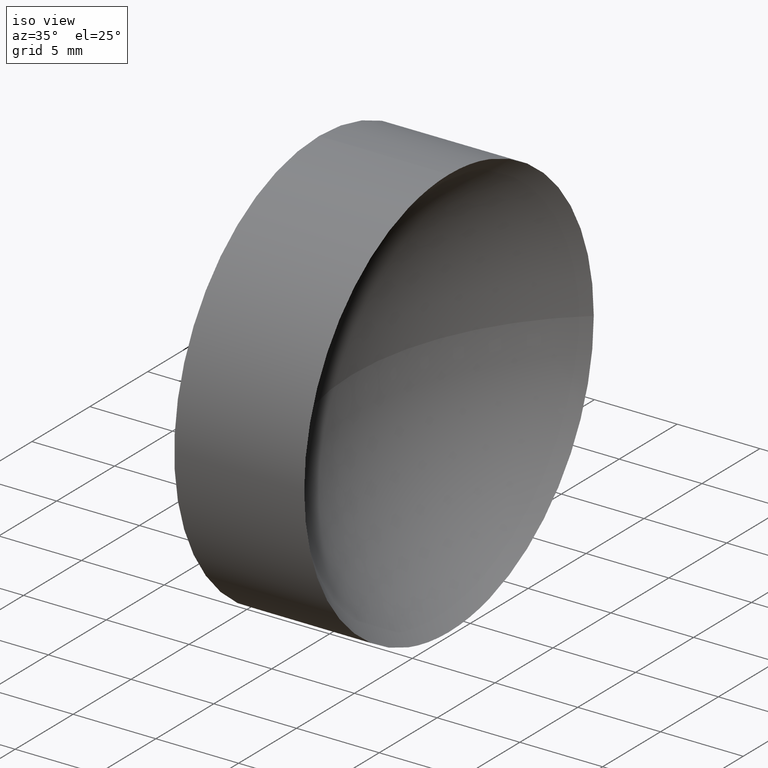
[diagram: clean part render]
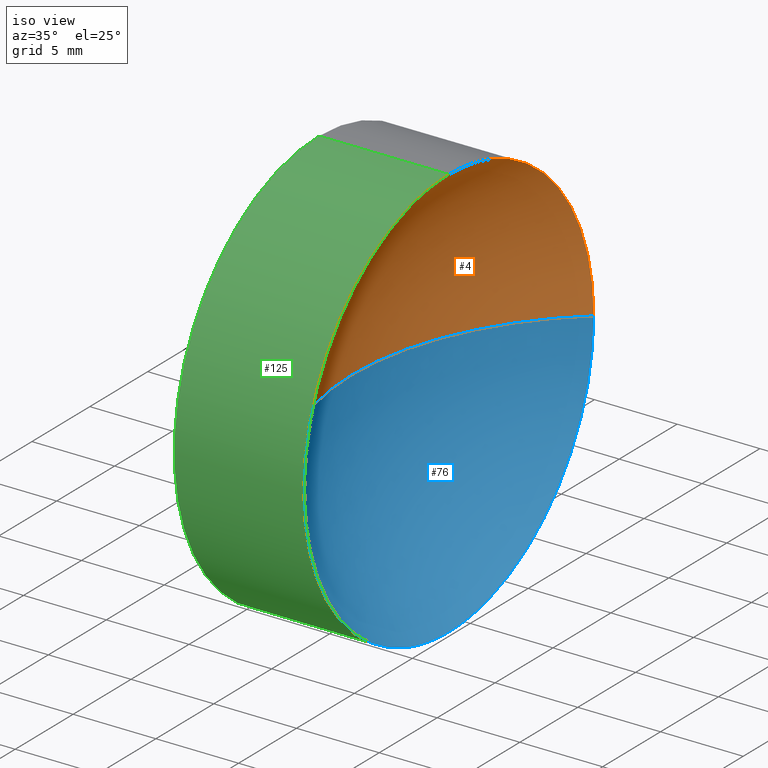
[diagram: same view with three faces highlighted in distinct colors, each labeled with its STEP entity id]
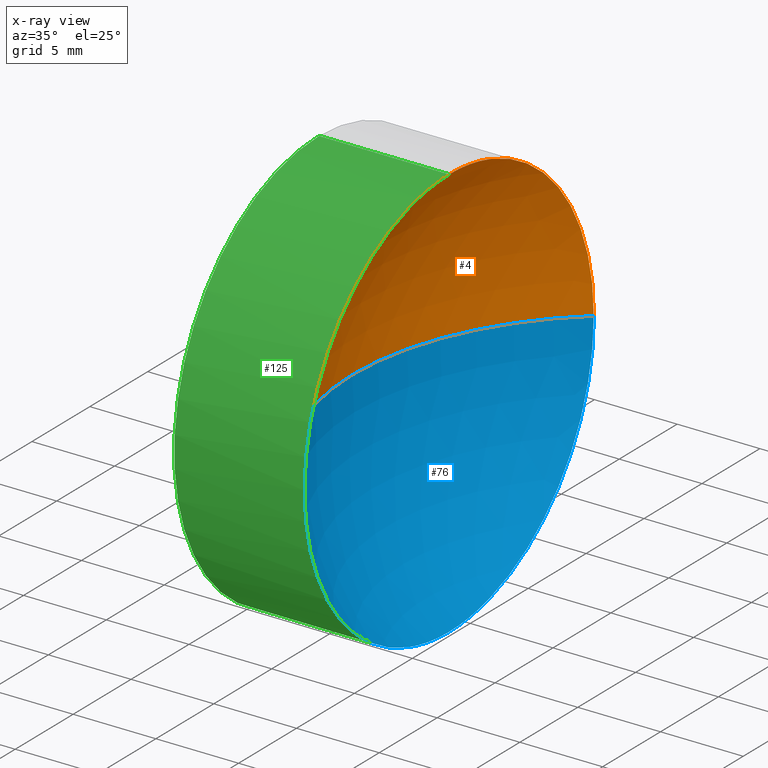
[diagram: x-ray of the same camera — body ghosted, the three highlighted faces saturated]
A machine part, iso view with three faces highlighted in distinct colors.
The next image is the same camera in x-ray (body ghosted, the three faces saturated) — at least one of them is partly hidden behind the body in this view.
Their STEP definitions:

[orange] entity #4 — the highlighted spherical surface has radius 16.27 mm.
#4 = ADVANCED_FACE ( 'NONE', ( #41 ), #169, .F. ) ;
#11 = VERTEX_POINT ( 'NONE', #18 ) ;
#12 = ORIENTED_EDGE ( 'NONE', *, *, #68, .T. ) ;
#16 = DIRECTION ( 'NONE',  ( 0.0000000000000000000, -1.000000000000000000, -1.224646799147353200E-016 ) ) ;
#18 = CARTESIAN_POINT ( 'NONE',  ( 65.38778473377520600, 45.11076812922679100, 1.530808498934191500E-015 ) ) ;
#20 = CARTESIAN_POINT ( 'NONE',  ( 75.80233705252611300, 32.61076812922678400, 0.0000000000000000000 ) ) ;
#21 = EDGE_CURVE ( 'NONE', #11, #88, #133, .T. ) ;
#22 = DIRECTION ( 'NONE',  ( -1.000000000000000000, 0.0000000000000000000, 0.0000000000000000000 ) ) ;
#33 = CARTESIAN_POINT ( 'NONE',  ( 65.38778473377520600, 32.61076812922678400, 0.0000000000000000000 ) ) ;
#38 = DIRECTION ( 'NONE',  ( 0.0000000000000000000, 0.0000000000000000000, 1.000000000000000000 ) ) ;
#40 = AXIS2_PLACEMENT_3D ( 'NONE', #86, #186, #16 ) ;
#41 = FACE_OUTER_BOUND ( 'NONE', #124, .T. ) ;
#55 = AXIS2_PLACEMENT_3D ( 'NONE', #33, #123, #160 ) ;
#57 = CARTESIAN_POINT ( 'NONE',  ( 75.80233705252611300, 32.61076812922678400, 0.0000000000000000000 ) ) ;
#65 = AXIS2_PLACEMENT_3D ( 'NONE', #94, #78, #38 ) ;
#68 = EDGE_CURVE ( 'NONE', #84, #88, #176, .T. ) ;
#78 = DIRECTION ( 'NONE',  ( -1.000000000000000000, -0.0000000000000000000, -0.0000000000000000000 ) ) ;
#80 = EDGE_CURVE ( 'NONE', #181, #11, #101, .T. ) ;
#84 = VERTEX_POINT ( 'NONE', #134 ) ;
#85 = AXIS2_PLACEMENT_3D ( 'NONE', #57, #159, #146 ) ;
#86 = CARTESIAN_POINT ( 'NONE',  ( 75.80233705252611300, 32.61076812922678400, 0.0000000000000000000 ) ) ;
#87 = EDGE_CURVE ( 'NONE', #84, #181, #185, .T. ) ;
#88 = VERTEX_POINT ( 'NONE', #107 ) ;
#94 = CARTESIAN_POINT ( 'NONE',  ( 65.38778473377520600, 32.61076812922678400, 0.0000000000000000000 ) ) ;
#100 = ORIENTED_EDGE ( 'NONE', *, *, #87, .F. ) ;
#101 = CIRCLE ( 'NONE', #55, 12.49999999999999600 ) ;
#107 = CARTESIAN_POINT ( 'NONE',  ( 59.53233705252611700, 32.61076812922678400, 0.0000000000000000000 ) ) ;
#111 = CARTESIAN_POINT ( 'NONE',  ( 65.38778473377520600, 32.61076812922678400, 12.49999999999999600 ) ) ;
#120 = ORIENTED_EDGE ( 'NONE', *, *, #21, .F. ) ;
#122 = ORIENTED_EDGE ( 'NONE', *, *, #80, .F. ) ;
#123 = DIRECTION ( 'NONE',  ( -1.000000000000000000, -0.0000000000000000000, -0.0000000000000000000 ) ) ;
#124 = EDGE_LOOP ( 'NONE', ( #120, #122, #100, #12 ) ) ;
#133 = CIRCLE ( 'NONE', #40, 16.27000000000000000 ) ;
#134 = CARTESIAN_POINT ( 'NONE',  ( 65.38778473377520600, 20.11076812922678800, 0.0000000000000000000 ) ) ;
#146 = DIRECTION ( 'NONE',  ( 0.0000000000000000000, -1.000000000000000000, 0.0000000000000000000 ) ) ;
#151 = AXIS2_PLACEMENT_3D ( 'NONE', #20, #174, #22 ) ;
#159 = DIRECTION ( 'NONE',  ( 0.0000000000000000000, 0.0000000000000000000, 1.000000000000000000 ) ) ;
#160 = DIRECTION ( 'NONE',  ( 0.0000000000000000000, 0.0000000000000000000, 1.000000000000000000 ) ) ;
#169 = SPHERICAL_SURFACE ( 'NONE', #85, 16.27000000000000000 ) ;
#174 = DIRECTION ( 'NONE',  ( 0.0000000000000000000, 0.0000000000000000000, -1.000000000000000000 ) ) ;
#176 = CIRCLE ( 'NONE', #151, 16.27000000000000000 ) ;
#181 = VERTEX_POINT ( 'NONE', #111 ) ;
#185 = CIRCLE ( 'NONE', #65, 12.49999999999999600 ) ;
#186 = DIRECTION ( 'NONE',  ( 0.0000000000000000000, -1.224646799147353200E-016, 1.000000000000000000 ) ) ;

[blue] entity #76 — the highlighted spherical surface has radius 16.27 mm.
#3 = DIRECTION ( 'NONE',  ( 0.0000000000000000000, -1.000000000000000000, 0.0000000000000000000 ) ) ;
#8 = AXIS2_PLACEMENT_3D ( 'NONE', #164, #10, #47 ) ;
#10 = DIRECTION ( 'NONE',  ( -1.000000000000000000, -0.0000000000000000000, -0.0000000000000000000 ) ) ;
#11 = VERTEX_POINT ( 'NONE', #18 ) ;
#16 = DIRECTION ( 'NONE',  ( 0.0000000000000000000, -1.000000000000000000, -1.224646799147353200E-016 ) ) ;
#17 = CARTESIAN_POINT ( 'NONE',  ( 65.38778473377520600, 32.61076812922678400, 0.0000000000000000000 ) ) ;
#18 = CARTESIAN_POINT ( 'NONE',  ( 65.38778473377520600, 45.11076812922679100, 1.530808498934191500E-015 ) ) ;
#20 = CARTESIAN_POINT ( 'NONE',  ( 75.80233705252611300, 32.61076812922678400, 0.0000000000000000000 ) ) ;
#21 = EDGE_CURVE ( 'NONE', #11, #88, #133, .T. ) ;
#22 = DIRECTION ( 'NONE',  ( -1.000000000000000000, 0.0000000000000000000, 0.0000000000000000000 ) ) ;
#23 = CARTESIAN_POINT ( 'NONE',  ( 75.80233705252611300, 32.61076812922678400, 0.0000000000000000000 ) ) ;
#32 = AXIS2_PLACEMENT_3D ( 'NONE', #23, #162, #3 ) ;
#39 = CIRCLE ( 'NONE', #103, 12.49999999999999600 ) ;
#40 = AXIS2_PLACEMENT_3D ( 'NONE', #86, #186, #16 ) ;
#47 = DIRECTION ( 'NONE',  ( 0.0000000000000000000, 0.0000000000000000000, 1.000000000000000000 ) ) ;
#50 = SPHERICAL_SURFACE ( 'NONE', #32, 16.27000000000000000 ) ;
#51 = VERTEX_POINT ( 'NONE', #132 ) ;
#52 = EDGE_CURVE ( 'NONE', #11, #51, #39, .T. ) ;
#53 = ORIENTED_EDGE ( 'NONE', *, *, #68, .F. ) ;
#54 = ORIENTED_EDGE ( 'NONE', *, *, #52, .F. ) ;
#56 = ORIENTED_EDGE ( 'NONE', *, *, #21, .T. ) ;
#60 = ORIENTED_EDGE ( 'NONE', *, *, #184, .F. ) ;
#68 = EDGE_CURVE ( 'NONE', #84, #88, #176, .T. ) ;
#73 = EDGE_LOOP ( 'NONE', ( #54, #56, #53, #60 ) ) ;
#76 = ADVANCED_FACE ( 'NONE', ( #81 ), #50, .F. ) ;
#81 = FACE_OUTER_BOUND ( 'NONE', #73, .T. ) ;
#84 = VERTEX_POINT ( 'NONE', #134 ) ;
#86 = CARTESIAN_POINT ( 'NONE',  ( 75.80233705252611300, 32.61076812922678400, 0.0000000000000000000 ) ) ;
#88 = VERTEX_POINT ( 'NONE', #107 ) ;
#103 = AXIS2_PLACEMENT_3D ( 'NONE', #17, #130, #148 ) ;
#107 = CARTESIAN_POINT ( 'NONE',  ( 59.53233705252611700, 32.61076812922678400, 0.0000000000000000000 ) ) ;
#129 = CIRCLE ( 'NONE', #8, 12.49999999999999600 ) ;
#130 = DIRECTION ( 'NONE',  ( -1.000000000000000000, -0.0000000000000000000, -0.0000000000000000000 ) ) ;
#132 = CARTESIAN_POINT ( 'NONE',  ( 65.38778473377520600, 32.61076812922678400, -12.49999999999999600 ) ) ;
#133 = CIRCLE ( 'NONE', #40, 16.27000000000000000 ) ;
#134 = CARTESIAN_POINT ( 'NONE',  ( 65.38778473377520600, 20.11076812922678800, 0.0000000000000000000 ) ) ;
#148 = DIRECTION ( 'NONE',  ( 0.0000000000000000000, 0.0000000000000000000, 1.000000000000000000 ) ) ;
#151 = AXIS2_PLACEMENT_3D ( 'NONE', #20, #174, #22 ) ;
#162 = DIRECTION ( 'NONE',  ( 0.0000000000000000000, 0.0000000000000000000, 1.000000000000000000 ) ) ;
#164 = CARTESIAN_POINT ( 'NONE',  ( 65.38778473377520600, 32.61076812922678400, 0.0000000000000000000 ) ) ;
#174 = DIRECTION ( 'NONE',  ( 0.0000000000000000000, 0.0000000000000000000, -1.000000000000000000 ) ) ;
#176 = CIRCLE ( 'NONE', #151, 16.27000000000000000 ) ;
#184 = EDGE_CURVE ( 'NONE', #51, #84, #129, .T. ) ;
#186 = DIRECTION ( 'NONE',  ( 0.0000000000000000000, -1.224646799147353200E-016, 1.000000000000000000 ) ) ;

[green] entity #125 — the highlighted cylindrical surface (partial cylindrical patch) has radius 12.5 mm, axis along (-1, -0, -0).
#1 = CARTESIAN_POINT ( 'NONE',  ( 57.53233705252611700, 32.61076812922678400, -12.49999999999999600 ) ) ;
#5 = CIRCLE ( 'NONE', #91, 12.49999999999999600 ) ;
#8 = AXIS2_PLACEMENT_3D ( 'NONE', #164, #10, #47 ) ;
#10 = DIRECTION ( 'NONE',  ( -1.000000000000000000, -0.0000000000000000000, -0.0000000000000000000 ) ) ;
#14 = VECTOR ( 'NONE', #140, 1000.000000000000000 ) ;
#19 = VERTEX_POINT ( 'NONE', #1 ) ;
#25 = CARTESIAN_POINT ( 'NONE',  ( 56.10091507999716500, 32.61076812922678400, 12.49999999999999600 ) ) ;
#31 = DIRECTION ( 'NONE',  ( -1.000000000000000000, -0.0000000000000000000, -0.0000000000000000000 ) ) ;
#34 = LINE ( 'NONE', #25, #14 ) ;
#38 = DIRECTION ( 'NONE',  ( 0.0000000000000000000, 0.0000000000000000000, 1.000000000000000000 ) ) ;
#42 = EDGE_CURVE ( 'NONE', #19, #90, #5, .T. ) ;
#43 = ORIENTED_EDGE ( 'NONE', *, *, #184, .T. ) ;
#47 = DIRECTION ( 'NONE',  ( 0.0000000000000000000, 0.0000000000000000000, 1.000000000000000000 ) ) ;
#51 = VERTEX_POINT ( 'NONE', #132 ) ;
#63 = DIRECTION ( 'NONE',  ( 0.0000000000000000000, 0.0000000000000000000, 1.000000000000000000 ) ) ;
#64 = EDGE_CURVE ( 'NONE', #51, #19, #156, .T. ) ;
#65 = AXIS2_PLACEMENT_3D ( 'NONE', #94, #78, #38 ) ;
#71 = CARTESIAN_POINT ( 'NONE',  ( 57.53233705252611700, 32.61076812922678400, 0.0000000000000000000 ) ) ;
#75 = ORIENTED_EDGE ( 'NONE', *, *, #64, .F. ) ;
#78 = DIRECTION ( 'NONE',  ( -1.000000000000000000, -0.0000000000000000000, -0.0000000000000000000 ) ) ;
#84 = VERTEX_POINT ( 'NONE', #134 ) ;
#87 = EDGE_CURVE ( 'NONE', #84, #181, #185, .T. ) ;
#90 = VERTEX_POINT ( 'NONE', #108 ) ;
#91 = AXIS2_PLACEMENT_3D ( 'NONE', #71, #102, #158 ) ;
#94 = CARTESIAN_POINT ( 'NONE',  ( 65.38778473377520600, 32.61076812922678400, 0.0000000000000000000 ) ) ;
#102 = DIRECTION ( 'NONE',  ( -1.000000000000000000, -0.0000000000000000000, -0.0000000000000000000 ) ) ;
#106 = ORIENTED_EDGE ( 'NONE', *, *, #42, .F. ) ;
#108 = CARTESIAN_POINT ( 'NONE',  ( 57.53233705252611700, 32.61076812922678400, 12.49999999999999600 ) ) ;
#111 = CARTESIAN_POINT ( 'NONE',  ( 65.38778473377520600, 32.61076812922678400, 12.49999999999999600 ) ) ;
#121 = CARTESIAN_POINT ( 'NONE',  ( 56.10091507999716500, 32.61076812922678400, -12.49999999999999600 ) ) ;
#125 = ADVANCED_FACE ( 'NONE', ( #144 ), #171, .T. ) ;
#128 = AXIS2_PLACEMENT_3D ( 'NONE', #178, #154, #63 ) ;
#129 = CIRCLE ( 'NONE', #8, 12.49999999999999600 ) ;
#131 = ORIENTED_EDGE ( 'NONE', *, *, #87, .T. ) ;
#132 = CARTESIAN_POINT ( 'NONE',  ( 65.38778473377520600, 32.61076812922678400, -12.49999999999999600 ) ) ;
#134 = CARTESIAN_POINT ( 'NONE',  ( 65.38778473377520600, 20.11076812922678800, 0.0000000000000000000 ) ) ;
#137 = EDGE_LOOP ( 'NONE', ( #75, #43, #131, #161, #106 ) ) ;
#140 = DIRECTION ( 'NONE',  ( -1.000000000000000000, -0.0000000000000000000, -0.0000000000000000000 ) ) ;
#144 = FACE_OUTER_BOUND ( 'NONE', #137, .T. ) ;
#153 = VECTOR ( 'NONE', #31, 1000.000000000000000 ) ;
#154 = DIRECTION ( 'NONE',  ( -1.000000000000000000, -0.0000000000000000000, -0.0000000000000000000 ) ) ;
#156 = LINE ( 'NONE', #121, #153 ) ;
#158 = DIRECTION ( 'NONE',  ( 0.0000000000000000000, 0.0000000000000000000, 1.000000000000000000 ) ) ;
#161 = ORIENTED_EDGE ( 'NONE', *, *, #173, .T. ) ;
#164 = CARTESIAN_POINT ( 'NONE',  ( 65.38778473377520600, 32.61076812922678400, 0.0000000000000000000 ) ) ;
#171 = CYLINDRICAL_SURFACE ( 'NONE', #128, 12.49999999999999600 ) ;
#173 = EDGE_CURVE ( 'NONE', #181, #90, #34, .T. ) ;
#178 = CARTESIAN_POINT ( 'NONE',  ( 56.10091507999716500, 32.61076812922678400, 0.0000000000000000000 ) ) ;
#181 = VERTEX_POINT ( 'NONE', #111 ) ;
#184 = EDGE_CURVE ( 'NONE', #51, #84, #129, .T. ) ;
#185 = CIRCLE ( 'NONE', #65, 12.49999999999999600 ) ;